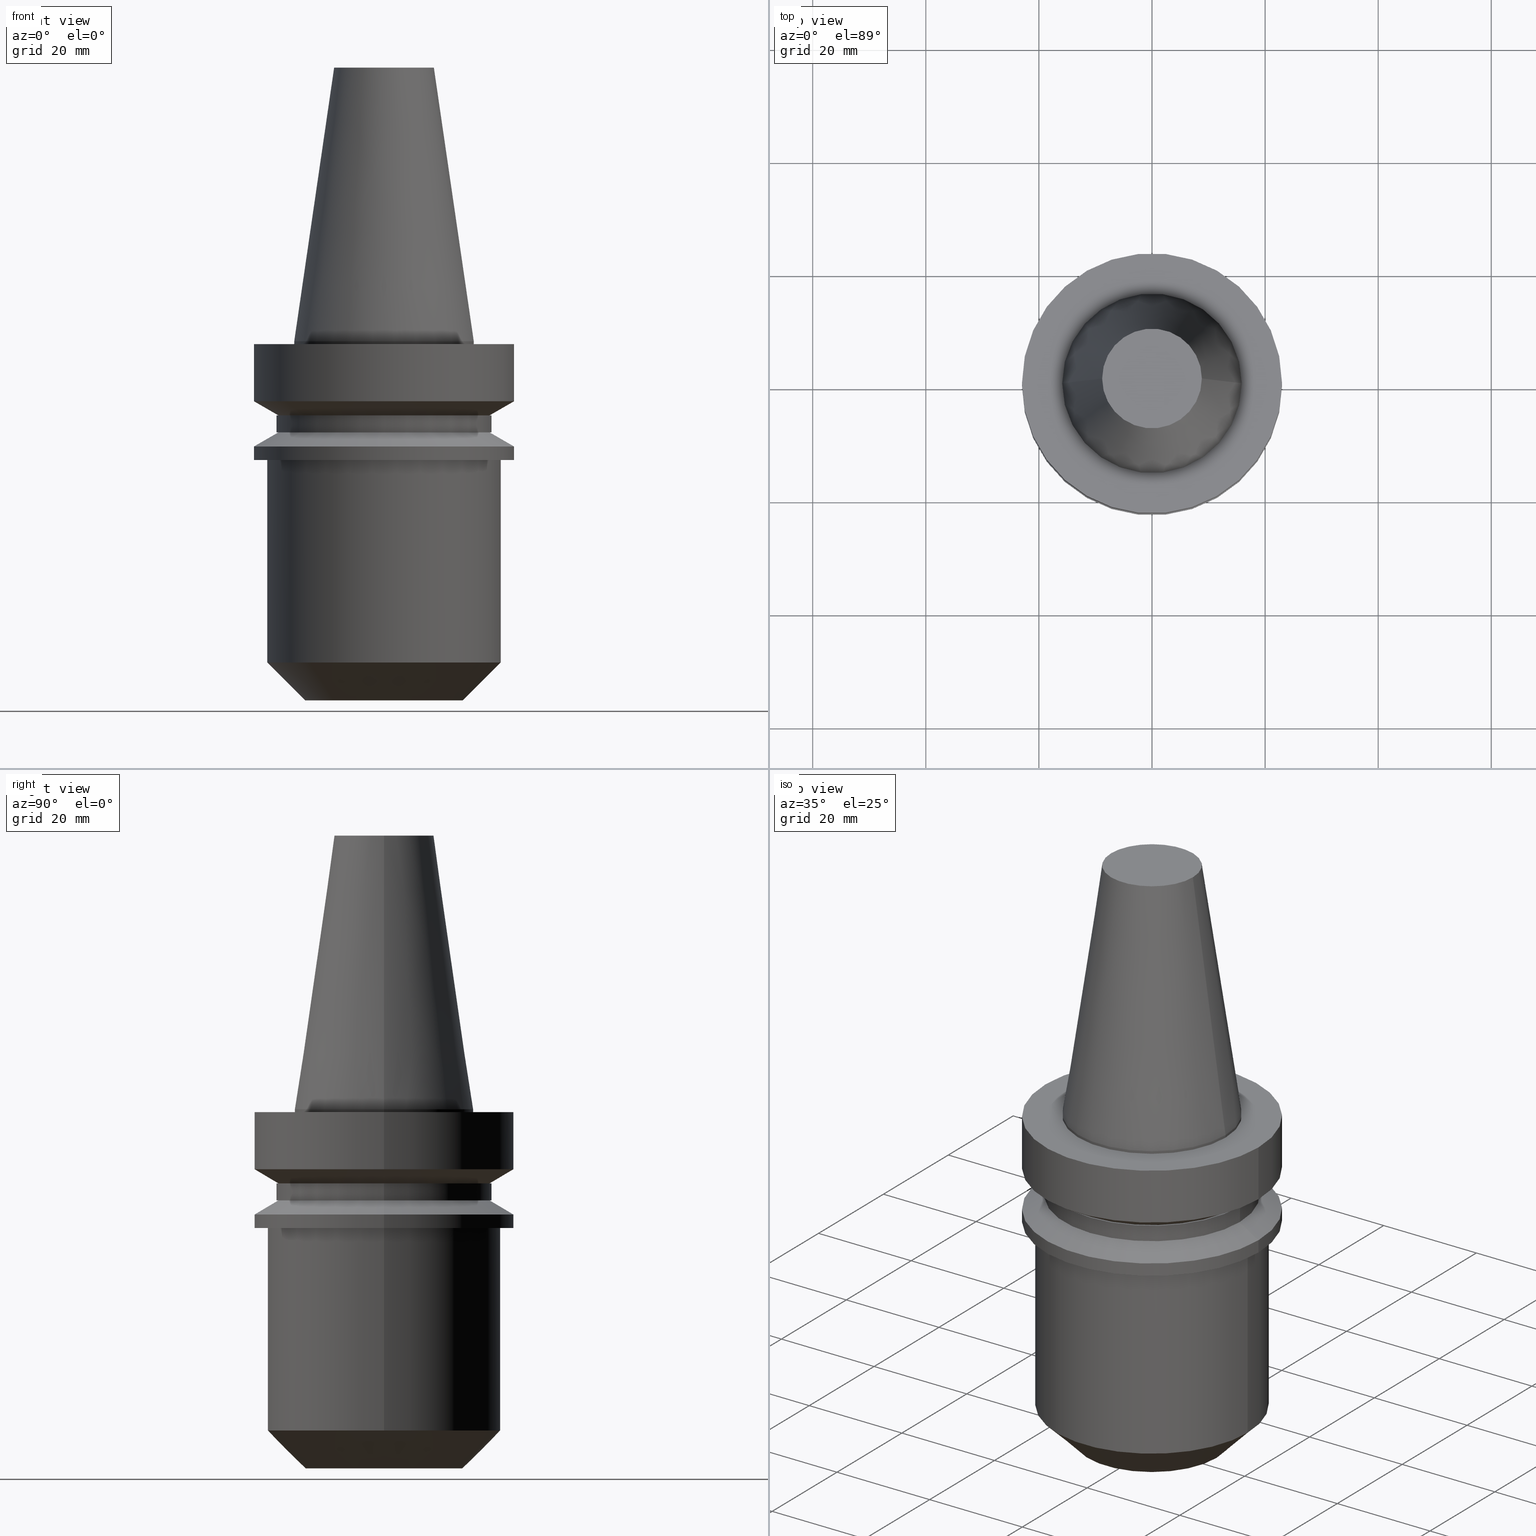
[diagram: canonical four-view strip — front | top / right | iso, engineering-drawing reading convention]
A machine part, canonical four-view strip (front | top / right | iso — engineering-drawing reading convention). The complete STEP part file that produces these views, byte-faithful:
ISO-10303-21;
HEADER;
FILE_DESCRIPTION (( 'STEP AP203' ),
    '1' );
FILE_NAME ('BBT30-EM_625-2_5.STEP',
    '2022-02-22T21:21:41',
    ( '' ),
    ( '' ),
    'SwSTEP 2.0',
    'SolidWorks 2021',
    '' );
FILE_SCHEMA (( 'CONFIG_CONTROL_DESIGN' ));
ENDSEC;

DATA;
#1 = CARTESIAN_POINT ( 'NONE',  ( 23.00000000000000355, 0.000000000000000000, 48.39999999999998437 ) ) ;
#2 = APPROVAL ( #689, 'UNSPECIFIED' ) ;
#3 = ORIENTED_EDGE ( 'NONE', *, *, #263, .T. ) ;
#4 = UNCERTAINTY_MEASURE_WITH_UNIT (LENGTH_MEASURE( 1.000000000000000082E-05 ), #313, 'distance_accuracy_value', 'NONE');
#5 = CARTESIAN_POINT ( 'NONE',  ( 18.66962701892216359, 2.551528767519354794E-15, -16.09999999999999076 ) ) ;
#6 = DIRECTION ( 'NONE',  ( 1.000000000000000000, 0.000000000000000000, 0.000000000000000000 ) ) ;
#7 = ORIENTED_EDGE ( 'NONE', *, *, #369, .T. ) ;
#8 = EDGE_CURVE ( 'NONE', #373, #28, #296, .T. ) ;
#9 = FACE_OUTER_BOUND ( 'NONE', #154, .T. ) ;
#10 = CLOSED_SHELL ( 'NONE', ( #318, #764, #546, #93, #453, #307, #525, #399, #177, #430, #312, #420, #435, #193, #638, #625, #731, #648, #181, #227, #104, #342, #159, #137, #671, #140, #38 ) ) ;
#11 = FACE_OUTER_BOUND ( 'NONE', #139, .T. ) ;
#12 = ORIENTED_EDGE ( 'NONE', *, *, #631, .F. ) ;
#13 = EDGE_CURVE ( 'NONE', #107, #721, #763, .T. ) ;
#14 = LINE ( 'NONE', #448, #105 ) ;
#15 = CYLINDRICAL_SURFACE ( 'NONE', #297, 15.87500000000000000 ) ;
#16 = EDGE_LOOP ( 'NONE', ( #745, #748, #512, #755 ) ) ;
#17 = CARTESIAN_POINT ( 'NONE',  ( 0.000000000000000000, 0.000000000000000000, 48.39999999999998437 ) ) ;
#18 = DIRECTION ( 'NONE',  ( -0.7071067811865434649, 8.659560562354883554E-17, 0.7071067811865516806 ) ) ;
#19 = ADVANCED_BREP_SHAPE_REPRESENTATION ( 'BBT30-EM_625-2_5', ( #614, #310 ), #405 ) ;
#20 = VERTEX_POINT ( 'NONE', #649 ) ;
#21 = DIRECTION ( 'NONE',  ( 1.000000000000000000, 0.000000000000000000, 0.000000000000000000 ) ) ;
#22 = DIRECTION ( 'NONE',  ( 1.000000000000000000, 0.000000000000000000, 0.000000000000000000 ) ) ;
#23 = ORIENTED_EDGE ( 'NONE', *, *, #707, .F. ) ;
#24 = CIRCLE ( 'NONE', #208, 23.00000000000000000 ) ;
#25 = AXIS2_PLACEMENT_3D ( 'NONE', #293, #540, #178 ) ;
#26 = DIRECTION ( 'NONE',  ( -0.000000000000000000, -0.000000000000000000, 1.000000000000000000 ) ) ;
#27 = DIRECTION ( 'NONE',  ( -0.000000000000000000, -0.000000000000000000, 1.000000000000000000 ) ) ;
#28 = VERTEX_POINT ( 'NONE', #581 ) ;
#29 = PERSON_AND_ORGANIZATION_ROLE ( 'creator' ) ;
#30 = DIRECTION ( 'NONE',  ( -0.000000000000000000, -0.000000000000000000, 1.000000000000000000 ) ) ;
#31 = ORIENTED_EDGE ( 'NONE', *, *, #702, .F. ) ;
#32 = EDGE_CURVE ( 'NONE', #273, #107, #75, .T. ) ;
#33 = COORDINATED_UNIVERSAL_TIME_OFFSET ( 6, 0, .BEHIND. ) ;
#34 = CARTESIAN_POINT ( 'NONE',  ( 13.94000000000008477, 0.000000000000000000, -63.50000000000000000 ) ) ;
#35 = DIRECTION ( 'NONE',  ( 1.000000000000000000, 0.000000000000000000, 0.000000000000000000 ) ) ;
#36 = CIRCLE ( 'NONE', #221, 8.816600212367498912 ) ;
#37 = DATE_AND_TIME ( #692, #616 ) ;
#38 = ADVANCED_FACE ( 'NONE', ( #282 ), #758, .F. ) ;
#39 = CARTESIAN_POINT ( 'NONE',  ( 7.937500000000000000, 0.000000000000000000, -63.50000000000000000 ) ) ;
#40 = CC_DESIGN_SECURITY_CLASSIFICATION ( #79, ( #508 ) ) ;
#41 = CARTESIAN_POINT ( 'NONE',  ( 0.000000000000000000, 22.99999999999999289, -20.99999999999999645 ) ) ;
#42 = LINE ( 'NONE', #686, #737 ) ;
#43 = EDGE_CURVE ( 'NONE', #201, #729, #219, .T. ) ;
#44 = DIRECTION ( 'NONE',  ( 1.000000000000000000, 0.000000000000000000, 0.000000000000000000 ) ) ;
#45 = PERSON_AND_ORGANIZATION_ROLE ( 'design_supplier' ) ;
#46 = DIRECTION ( 'NONE',  ( 0.000000000000000000, 0.000000000000000000, -1.000000000000000000 ) ) ;
#47 = ORIENTED_EDGE ( 'NONE', *, *, #125, .F. ) ;
#48 = AXIS2_PLACEMENT_3D ( 'NONE', #99, #393, #49 ) ;
#49 = DIRECTION ( 'NONE',  ( -1.000000000000000000, 0.000000000000000000, 0.000000000000000000 ) ) ;
#50 = CC_DESIGN_APPROVAL ( #61, ( #517 ) ) ;
#51 = DIRECTION ( 'NONE',  ( 1.000000000000000000, 0.000000000000000000, 0.000000000000000000 ) ) ;
#52 = CARTESIAN_POINT ( 'NONE',  ( 23.00000000000000000, 0.000000000000000000, -0.5000000000000004441 ) ) ;
#53 = FACE_OUTER_BOUND ( 'NONE', #602, .T. ) ;
#54 = EDGE_CURVE ( 'NONE', #721, #622, #58, .T. ) ;
#55 = DIRECTION ( 'NONE',  ( -0.000000000000000000, -0.000000000000000000, 1.000000000000000000 ) ) ;
#56 = CARTESIAN_POINT ( 'NONE',  ( 0.000000000000000000, 0.000000000000000000, -56.80000000000000426 ) ) ;
#57 = ORIENTED_EDGE ( 'NONE', *, *, #290, .T. ) ;
#58 = CIRCLE ( 'NONE', #564, 20.64000000000000412 ) ;
#59 = AXIS2_PLACEMENT_3D ( 'NONE', #605, #425, #189 ) ;
#60 = DIRECTION ( 'NONE',  ( 0.000000000000000000, -0.000000000000000000, 1.000000000000000000 ) ) ;
#61 = APPROVAL ( #457, 'UNSPECIFIED' ) ;
#62 = CIRCLE ( 'NONE', #158, 19.00000000000000000 ) ;
#63 = DIRECTION ( 'NONE',  ( 1.000000000000000000, 0.000000000000000000, 0.000000000000000000 ) ) ;
#64 = CIRCLE ( 'NONE', #630, 23.00000000000000711 ) ;
#65 = ORIENTED_EDGE ( 'NONE', *, *, #395, .F. ) ;
#66 = CARTESIAN_POINT ( 'NONE',  ( 0.000000000000000000, 0.000000000000000000, -18.60014200631680836 ) ) ;
#67 = FACE_OUTER_BOUND ( 'NONE', #145, .T. ) ;
#68 = EDGE_CURVE ( 'NONE', #729, #133, #661, .T. ) ;
#69 = ORIENTED_EDGE ( 'NONE', *, *, #54, .F. ) ;
#70 = FACE_OUTER_BOUND ( 'NONE', #119, .T. ) ;
#71 = DIRECTION ( 'NONE',  ( 1.000000000000000000, 0.000000000000000000, 0.000000000000000000 ) ) ;
#72 = ORIENTED_EDGE ( 'NONE', *, *, #503, .F. ) ;
#73 = EDGE_CURVE ( 'NONE', #528, #490, #670, .T. ) ;
#74 = DIRECTION ( 'NONE',  ( -0.000000000000000000, -0.000000000000000000, 1.000000000000000000 ) ) ;
#75 = CIRCLE ( 'NONE', #476, 20.64000000000000057 ) ;
#76 = DIRECTION ( 'NONE',  ( -0.000000000000000000, -0.000000000000000000, 1.000000000000000000 ) ) ;
#77 = CIRCLE ( 'NONE', #468, 7.937500000000000000 ) ;
#78 = ORIENTED_EDGE ( 'NONE', *, *, #702, .T. ) ;
#79 = SECURITY_CLASSIFICATION ( '', '', #160 ) ;
#80 = DIRECTION ( 'NONE',  ( -0.000000000000000000, -0.000000000000000000, 1.000000000000000000 ) ) ;
#81 = CARTESIAN_POINT ( 'NONE',  ( 0.000000000000000000, 0.000000000000000000, 48.39999999999998437 ) ) ;
#82 = EDGE_LOOP ( 'NONE', ( #226, #92 ) ) ;
#83 = MECHANICAL_CONTEXT ( 'NONE', #220, 'mechanical' ) ;
#84 = CARTESIAN_POINT ( 'NONE',  ( 0.000000000000000000, 0.000000000000000000, -16.10000000000000142 ) ) ;
#85 = EDGE_LOOP ( 'NONE', ( #303, #521, #109, #12 ) ) ;
#86 = LINE ( 'NONE', #257, #555 ) ;
#87 = ORIENTED_EDGE ( 'NONE', *, *, #268, .T. ) ;
#88 = CIRCLE ( 'NONE', #264, 7.937500000000000000 ) ;
#89 = CIRCLE ( 'NONE', #392, 19.00000000000000000 ) ;
#90 = APPLICATION_PROTOCOL_DEFINITION ( 'international standard', 'config_control_design', 1994, #220 ) ;
#91 = CYLINDRICAL_SURFACE ( 'NONE', #350, 7.937499999999996447 ) ;
#92 = ORIENTED_EDGE ( 'NONE', *, *, #253, .T. ) ;
#93 = ADVANCED_FACE ( 'NONE', ( #179 ), #552, .T. ) ;
#94 = DATE_AND_TIME ( #110, #224 ) ;
#95 = FACE_OUTER_BOUND ( 'NONE', #168, .T. ) ;
#96 = ORIENTED_EDGE ( 'NONE', *, *, #513, .T. ) ;
#97 = EDGE_CURVE ( 'NONE', #212, #752, #375, .T. ) ;
#98 = PERSON_AND_ORGANIZATION ( #647, #496 ) ;
#99 = CARTESIAN_POINT ( 'NONE',  ( 0.000000000000000000, 0.000000000000000000, 0.000000000000000000 ) ) ;
#100 = ORIENTED_EDGE ( 'NONE', *, *, #718, .T. ) ;
#101 = AXIS2_PLACEMENT_3D ( 'NONE', #81, #372, #678 ) ;
#102 = VECTOR ( 'NONE', #699, 1000.000000000000000 ) ;
#103 = APPROVAL_STATUS ( 'not_yet_approved' ) ;
#104 = ADVANCED_FACE ( 'NONE', ( #122, #126 ), #483, .F. ) ;
#105 = VECTOR ( 'NONE', #615, 1000.000000000000000 ) ;
#106 = DIRECTION ( 'NONE',  ( 1.000000000000000000, 0.000000000000000000, 0.000000000000000000 ) ) ;
#107 = VERTEX_POINT ( 'NONE', #601 ) ;
#108 = CARTESIAN_POINT ( 'NONE',  ( 0.000000000000000000, 8.816600212367498912, 48.39999999999999147 ) ) ;
#109 = ORIENTED_EDGE ( 'NONE', *, *, #395, .T. ) ;
#110 = CALENDAR_DATE ( 2022, 22, 2 ) ;
#111 = CYLINDRICAL_SURFACE ( 'NONE', #454, 23.00000000000000355 ) ;
#112 = CARTESIAN_POINT ( 'NONE',  ( 0.000000000000000000, 0.000000000000000000, -56.80000000000000426 ) ) ;
#113 = CARTESIAN_POINT ( 'NONE',  ( -20.64000000000000412, 2.527670993440137734E-15, -20.99999999999999645 ) ) ;
#114 = CIRCLE ( 'NONE', #582, 13.94000000000008477 ) ;
#115 = EDGE_LOOP ( 'NONE', ( #526, #100 ) ) ;
#116 = EDGE_CURVE ( 'NONE', #107, #273, #389, .T. ) ;
#117 = LINE ( 'NONE', #240, #543 ) ;
#118 = DIRECTION ( 'NONE',  ( -0.000000000000000000, -0.000000000000000000, 1.000000000000000000 ) ) ;
#119 = EDGE_LOOP ( 'NONE', ( #612, #233 ) ) ;
#120 = CC_DESIGN_PERSON_AND_ORGANIZATION_ASSIGNMENT ( #155, #400, ( #79 ) ) ;
#121 = DIRECTION ( 'NONE',  ( 1.000000000000000000, 0.000000000000000000, 0.000000000000000000 ) ) ;
#122 = FACE_BOUND ( 'NONE', #409, .T. ) ;
#123 = ORIENTED_EDGE ( 'NONE', *, *, #97, .F. ) ;
#124 = DIRECTION ( 'NONE',  ( 1.000000000000000000, 0.000000000000000000, 0.000000000000000000 ) ) ;
#125 = EDGE_CURVE ( 'NONE', #450, #487, #36, .T. ) ;
#126 = FACE_OUTER_BOUND ( 'NONE', #542, .T. ) ;
#127 = EDGE_LOOP ( 'NONE', ( #455, #387 ) ) ;
#128 = DIRECTION ( 'NONE',  ( 1.000000000000000000, 0.000000000000000000, 0.000000000000000000 ) ) ;
#129 = EDGE_CURVE ( 'NONE', #509, #591, #353, .T. ) ;
#130 = DIRECTION ( 'NONE',  ( -0.000000000000000000, -0.000000000000000000, 1.000000000000000000 ) ) ;
#131 = ORIENTED_EDGE ( 'NONE', *, *, #243, .F. ) ;
#132 = CARTESIAN_POINT ( 'NONE',  ( -15.87500000000000000, 1.944126793646423238E-15, -0.5000000000000004441 ) ) ;
#133 = VERTEX_POINT ( 'NONE', #545 ) ;
#134 = DIRECTION ( 'NONE',  ( 1.000000000000000000, 0.000000000000000000, 0.000000000000000000 ) ) ;
#135 = DIRECTION ( 'NONE',  ( -0.000000000000000000, -0.000000000000000000, 1.000000000000000000 ) ) ;
#136 = VERTEX_POINT ( 'NONE', #175 ) ;
#137 = ADVANCED_FACE ( 'NONE', ( #67 ), #479, .T. ) ;
#138 = LINE ( 'NONE', #747, #492 ) ;
#139 = EDGE_LOOP ( 'NONE', ( #252, #280, #258, #300 ) ) ;
#140 = ADVANCED_FACE ( 'NONE', ( #654 ), #172, .F. ) ;
#141 = DIRECTION ( 'NONE',  ( 1.000000000000000000, 0.000000000000000000, 0.000000000000000000 ) ) ;
#142 = DIRECTION ( 'NONE',  ( 0.000000000000000000, -0.000000000000000000, 1.000000000000000000 ) ) ;
#143 = ORIENTED_EDGE ( 'NONE', *, *, #573, .T. ) ;
#144 = DIRECTION ( 'NONE',  ( 1.000000000000000000, 0.000000000000000000, 0.000000000000000000 ) ) ;
#145 = EDGE_LOOP ( 'NONE', ( #246, #668, #394, #588 ) ) ;
#146 = AXIS2_PLACEMENT_3D ( 'NONE', #250, #436, #539 ) ;
#147 = CONICAL_SURFACE ( 'NONE', #712, 15.87500000000000000, 0.1448138426689024039 ) ;
#148 = APPROVAL_PERSON_ORGANIZATION ( #749, #61, #333 ) ;
#149 = LINE ( 'NONE', #34, #404 ) ;
#150 = EDGE_CURVE ( 'NONE', #133, #568, #355, .T. ) ;
#151 = VERTEX_POINT ( 'NONE', #185 ) ;
#152 = APPLICATION_PROTOCOL_DEFINITION ( 'international standard', 'config_control_design', 1994, #402 ) ;
#153 = DIRECTION ( 'NONE',  ( 1.000000000000000000, 0.000000000000000000, 0.000000000000000000 ) ) ;
#154 = EDGE_LOOP ( 'NONE', ( #437, #187, #500, #370 ) ) ;
#155 = PERSON_AND_ORGANIZATION ( #647, #496 ) ;
#156 = DIRECTION ( 'NONE',  ( -1.000000000000000000, 0.000000000000000000, 0.000000000000000000 ) ) ;
#157 = VERTEX_POINT ( 'NONE', #486 ) ;
#158 = AXIS2_PLACEMENT_3D ( 'NONE', #317, #449, #674 ) ;
#159 = ADVANCED_FACE ( 'NONE', ( #53 ), #667, .T. ) ;
#160 = SECURITY_CLASSIFICATION_LEVEL ( 'unclassified' ) ;
#161 = APPROVAL_PERSON_ORGANIZATION ( #577, #529, #217 ) ;
#162 = DIRECTION ( 'NONE',  ( -1.000000000000000000, 0.000000000000000000, 0.000000000000000000 ) ) ;
#163 = EDGE_LOOP ( 'NONE', ( #484, #684 ) ) ;
#164 = CARTESIAN_POINT ( 'NONE',  ( 8.816600212367498912, 1.511924458295098338E-15, 48.39999999999999858 ) ) ;
#165 = ORIENTED_EDGE ( 'NONE', *, *, #116, .T. ) ;
#166 = CARTESIAN_POINT ( 'NONE',  ( -15.87500000000000000, 0.000000000000000000, 0.000000000000000000 ) ) ;
#167 = EDGE_CURVE ( 'NONE', #20, #774, #549, .T. ) ;
#168 = EDGE_LOOP ( 'NONE', ( #384, #47, #173, #724 ) ) ;
#169 = VECTOR ( 'NONE', #765, 1000.000000000000000 ) ;
#170 = CARTESIAN_POINT ( 'NONE',  ( 0.000000000000000000, 0.000000000000000000, -16.09999999999999076 ) ) ;
#171 = CONICAL_SURFACE ( 'NONE', #351, 13.94000000000008477, 0.7853981633974423948 ) ;
#172 = CYLINDRICAL_SURFACE ( 'NONE', #234, 7.937499999999996447 ) ;
#173 = ORIENTED_EDGE ( 'NONE', *, *, #243, .T. ) ;
#174 = DIRECTION ( 'NONE',  ( 1.000000000000000000, 0.000000000000000000, 0.000000000000000000 ) ) ;
#175 = CARTESIAN_POINT ( 'NONE',  ( -19.00000000000000000, 2.326828918379970970E-15, -16.10000000000000142 ) ) ;
#176 = ORIENTED_EDGE ( 'NONE', *, *, #97, .T. ) ;
#177 = ADVANCED_FACE ( 'NONE', ( #489 ), #432, .T. ) ;
#178 = DIRECTION ( 'NONE',  ( 1.000000000000000000, 0.000000000000000000, 0.000000000000000000 ) ) ;
#179 = FACE_OUTER_BOUND ( 'NONE', #295, .T. ) ;
#180 = VERTEX_POINT ( 'NONE', #305 ) ;
#181 = ADVANCED_FACE ( 'NONE', ( #11 ), #260, .T. ) ;
#182 = AXIS2_PLACEMENT_3D ( 'NONE', #232, #723, #728 ) ;
#183 = DIRECTION ( 'NONE',  ( -1.000000000000000000, 0.000000000000000000, -0.000000000000000000 ) ) ;
#184 = CIRCLE ( 'NONE', #710, 7.937499999999996447 ) ;
#185 = CARTESIAN_POINT ( 'NONE',  ( 19.00000000000000000, 0.000000000000000000, -16.10000000000000142 ) ) ;
#186 = AXIS2_PLACEMENT_3D ( 'NONE', #301, #548, #183 ) ;
#187 = ORIENTED_EDGE ( 'NONE', *, *, #771, .T. ) ;
#188 = CARTESIAN_POINT ( 'NONE',  ( 15.87500000000000000, 0.000000000000000000, -0.5000000000000004441 ) ) ;
#189 = DIRECTION ( 'NONE',  ( 1.000000000000000000, 0.000000000000000000, 0.000000000000000000 ) ) ;
#190 = VERTEX_POINT ( 'NONE', #768 ) ;
#191 = DIRECTION ( 'NONE',  ( -0.000000000000000000, -0.000000000000000000, 1.000000000000000000 ) ) ;
#192 = CARTESIAN_POINT ( 'NONE',  ( -18.66962701892216359, 2.551528767519355189E-15, -13.10028401263362063 ) ) ;
#193 = ADVANCED_FACE ( 'NONE', ( #478 ), #681, .T. ) ;
#194 = ORIENTED_EDGE ( 'NONE', *, *, #584, .F. ) ;
#195 = PLANE ( 'NONE',  #337 ) ;
#196 = AXIS2_PLACEMENT_3D ( 'NONE', #643, #531, #284 ) ;
#197 = EDGE_LOOP ( 'NONE', ( #96, #733, #31, #626 ) ) ;
#198 = AXIS2_PLACEMENT_3D ( 'NONE', #362, #60, #604 ) ;
#199 = CARTESIAN_POINT ( 'NONE',  ( 0.000000000000000000, 0.000000000000000000, 48.39999999999999858 ) ) ;
#200 = CARTESIAN_POINT ( 'NONE',  ( 0.000000000000000000, 22.99999999999999289, -20.99999999999999645 ) ) ;
#201 = VERTEX_POINT ( 'NONE', #192 ) ;
#202 = CARTESIAN_POINT ( 'NONE',  ( 0.000000000000000000, 0.000000000000000000, -21.00000000000000355 ) ) ;
#203 = DIRECTION ( 'NONE',  ( 1.000000000000000000, 0.000000000000000000, 0.000000000000000000 ) ) ;
#204 = EDGE_LOOP ( 'NONE', ( #207, #289 ) ) ;
#205 = COORDINATED_UNIVERSAL_TIME_OFFSET ( 6, 0, .BEHIND. ) ;
#206 = DIRECTION ( 'NONE',  ( 1.000000000000000000, 0.000000000000000000, 0.000000000000000000 ) ) ;
#207 = ORIENTED_EDGE ( 'NONE', *, *, #332, .T. ) ;
#208 = AXIS2_PLACEMENT_3D ( 'NONE', #559, #378, #266 ) ;
#209 = AXIS2_PLACEMENT_3D ( 'NONE', #579, #754, #589 ) ;
#210 = CALENDAR_DATE ( 2022, 22, 2 ) ;
#211 = FACE_OUTER_BOUND ( 'NONE', #398, .T. ) ;
#212 = VERTEX_POINT ( 'NONE', #132 ) ;
#213 = APPROVAL_ROLE ( '' ) ;
#214 = DIRECTION ( 'NONE',  ( -0.000000000000000000, -0.000000000000000000, 1.000000000000000000 ) ) ;
#215 = DIRECTION ( 'NONE',  ( 1.000000000000000000, 0.000000000000000000, 0.000000000000000000 ) ) ;
#216 = EDGE_CURVE ( 'NONE', #752, #632, #138, .T. ) ;
#217 = APPROVAL_ROLE ( '' ) ;
#218 = CARTESIAN_POINT ( 'NONE',  ( 13.94000000000008477, 0.000000000000000000, -63.50000000000000000 ) ) ;
#219 = LINE ( 'NONE', #467, #685 ) ;
#220 = APPLICATION_CONTEXT ( 'configuration controlled 3d designs of mechanical parts and assemblies' ) ;
#221 = AXIS2_PLACEMENT_3D ( 'NONE', #497, #292, #299 ) ;
#222 = EDGE_CURVE ( 'NONE', #151, #136, #349, .T. ) ;
#223 = AXIS2_PLACEMENT_3D ( 'NONE', #524, #214, #174 ) ;
#224 = LOCAL_TIME ( 15, 21, 41.00000000000000000, #586 ) ;
#225 = DIRECTION ( 'NONE',  ( -0.000000000000000000, -0.000000000000000000, 1.000000000000000000 ) ) ;
#226 = ORIENTED_EDGE ( 'NONE', *, *, #600, .T. ) ;
#227 = ADVANCED_FACE ( 'NONE', ( #441 ), #383, .T. ) ;
#228 = DIRECTION ( 'NONE',  ( -1.000000000000000000, 0.000000000000000000, -0.000000000000000000 ) ) ;
#229 = EDGE_LOOP ( 'NONE', ( #311, #57, #481, #72 ) ) ;
#230 = DIRECTION ( 'NONE',  ( -0.000000000000000000, -0.000000000000000000, 1.000000000000000000 ) ) ;
#231 = CC_DESIGN_DATE_AND_TIME_ASSIGNMENT ( #37, #277, ( #79 ) ) ;
#232 = CARTESIAN_POINT ( 'NONE',  ( 0.000000000000000000, 0.000000000000000000, 48.39999999999998437 ) ) ;
#233 = ORIENTED_EDGE ( 'NONE', *, *, #613, .F. ) ;
#234 = AXIS2_PLACEMENT_3D ( 'NONE', #658, #608, #594 ) ;
#235 = DIRECTION ( 'NONE',  ( 1.000000000000000000, 0.000000000000000000, 0.000000000000000000 ) ) ;
#236 = CIRCLE ( 'NONE', #456, 22.99999999999999289 ) ;
#237 = DIRECTION ( 'NONE',  ( 1.000000000000000000, 0.000000000000000000, 0.000000000000000000 ) ) ;
#238 = EDGE_CURVE ( 'NONE', #212, #516, #624, .T. ) ;
#239 = ORIENTED_EDGE ( 'NONE', *, *, #13, .F. ) ;
#240 = CARTESIAN_POINT ( 'NONE',  ( -20.64000000000000412, 2.527670993440137734E-15, 0.000000000000000000 ) ) ;
#241 = DIRECTION ( 'NONE',  ( -0.000000000000000000, -0.000000000000000000, 1.000000000000000000 ) ) ;
#242 = ORIENTED_EDGE ( 'NONE', *, *, #73, .F. ) ;
#243 = EDGE_CURVE ( 'NONE', #450, #516, #621, .T. ) ;
#244 = CARTESIAN_POINT ( 'NONE',  ( 0.000000000000000000, 0.000000000000000000, -18.60014200631680836 ) ) ;
#245 = DIRECTION ( 'NONE',  ( -0.000000000000000000, -0.000000000000000000, 1.000000000000000000 ) ) ;
#246 = ORIENTED_EDGE ( 'NONE', *, *, #290, .F. ) ;
#247 = AXIS2_PLACEMENT_3D ( 'NONE', #499, #571, #206 ) ;
#248 = CARTESIAN_POINT ( 'NONE',  ( 0.000000000000000000, 0.000000000000000000, -13.10028401263362063 ) ) ;
#249 = CIRCLE ( 'NONE', #480, 18.66962701892216359 ) ;
#250 = CARTESIAN_POINT ( 'NONE',  ( 0.000000000000000000, 0.000000000000000000, -13.10028401263362063 ) ) ;
#251 = AXIS2_PLACEMENT_3D ( 'NONE', #244, #291, #429 ) ;
#252 = ORIENTED_EDGE ( 'NONE', *, *, #43, .F. ) ;
#253 = EDGE_CURVE ( 'NONE', #528, #659, #249, .T. ) ;
#254 = CARTESIAN_POINT ( 'NONE',  ( 0.000000000000000000, 0.000000000000000000, 48.39999999999998437 ) ) ;
#255 = ORIENTED_EDGE ( 'NONE', *, *, #469, .T. ) ;
#256 = CC_DESIGN_DATE_AND_TIME_ASSIGNMENT ( #756, #406, ( #517 ) ) ;
#257 = CARTESIAN_POINT ( 'NONE',  ( -13.94000000000008477, 1.707157638011420642E-15, -63.50000000000000000 ) ) ;
#258 = ORIENTED_EDGE ( 'NONE', *, *, #595, .T. ) ;
#259 = FACE_BOUND ( 'NONE', #204, .T. ) ;
#260 = CONICAL_SURFACE ( 'NONE', #146, 18.66962701892216359, 1.047197551196590082 ) ;
#261 = DIRECTION ( 'NONE',  ( -0.000000000000000000, -0.000000000000000000, 1.000000000000000000 ) ) ;
#262 = ORIENTED_EDGE ( 'NONE', *, *, #357, .F. ) ;
#263 = EDGE_CURVE ( 'NONE', #632, #516, #505, .T. ) ;
#264 = AXIS2_PLACEMENT_3D ( 'NONE', #488, #485, #354 ) ;
#265 = DIRECTION ( 'NONE',  ( 1.000000000000000000, 0.000000000000000000, 0.000000000000000000 ) ) ;
#266 = DIRECTION ( 'NONE',  ( 1.000000000000000000, 0.000000000000000000, 0.000000000000000000 ) ) ;
#267 = ORIENTED_EDGE ( 'NONE', *, *, #216, .T. ) ;
#268 = EDGE_CURVE ( 'NONE', #568, #609, #24, .T. ) ;
#269 = PERSON_AND_ORGANIZATION ( #647, #496 ) ;
#270 = DIRECTION ( 'NONE',  ( -0.000000000000000000, -0.000000000000000000, 1.000000000000000000 ) ) ;
#271 = ORIENTED_EDGE ( 'NONE', *, *, #477, .T. ) ;
#272 = DIRECTION ( 'NONE',  ( -0.000000000000000000, -0.000000000000000000, 1.000000000000000000 ) ) ;
#273 = VERTEX_POINT ( 'NONE', #314 ) ;
#274 = AXIS2_PLACEMENT_3D ( 'NONE', #418, #662, #359 ) ;
#275 = CONICAL_SURFACE ( 'NONE', #578, 23.00000000000000000, 1.047197551196589416 ) ;
#276 = APPROVAL_PERSON_ORGANIZATION ( #269, #2, #213 ) ;
#277 = DATE_TIME_ROLE ( 'classification_date' ) ;
#278 = DIRECTION ( 'NONE',  ( -0.000000000000000000, -0.000000000000000000, 1.000000000000000000 ) ) ;
#279 = EDGE_CURVE ( 'NONE', #336, #190, #62, .T. ) ;
#280 = ORIENTED_EDGE ( 'NONE', *, *, #324, .T. ) ;
#281 = DIRECTION ( 'NONE',  ( -0.000000000000000000, -0.000000000000000000, 1.000000000000000000 ) ) ;
#282 = FACE_OUTER_BOUND ( 'NONE', #447, .T. ) ;
#283 = APPROVAL_DATE_TIME ( #696, #529 ) ;
#284 = DIRECTION ( 'NONE',  ( 1.000000000000000000, 0.000000000000000000, 0.000000000000000000 ) ) ;
#285 = ORIENTED_EDGE ( 'NONE', *, *, #656, .T. ) ;
#286 = CIRCLE ( 'NONE', #196, 23.00000000000000000 ) ;
#287 = AXIS2_PLACEMENT_3D ( 'NONE', #739, #316, #320 ) ;
#288 = DIRECTION ( 'NONE',  ( 1.000000000000000000, 0.000000000000000000, 0.000000000000000000 ) ) ;
#289 = ORIENTED_EDGE ( 'NONE', *, *, #537, .T. ) ;
#290 = EDGE_CURVE ( 'NONE', #28, #273, #86, .T. ) ;
#291 = DIRECTION ( 'NONE',  ( -0.000000000000000000, -0.000000000000000000, 1.000000000000000000 ) ) ;
#292 = DIRECTION ( 'NONE',  ( -0.000000000000000000, -0.000000000000000000, 1.000000000000000000 ) ) ;
#293 = CARTESIAN_POINT ( 'NONE',  ( 0.000000000000000000, 0.000000000000000000, 0.000000000000000000 ) ) ;
#294 = DIRECTION ( 'NONE',  ( 1.000000000000000000, 0.000000000000000000, 0.000000000000000000 ) ) ;
#295 = EDGE_LOOP ( 'NONE', ( #356, #380, #606, #769 ) ) ;
#296 = CIRCLE ( 'NONE', #361, 13.94000000000008477 ) ;
#297 = AXIS2_PLACEMENT_3D ( 'NONE', #254, #272, #153 ) ;
#298 = CARTESIAN_POINT ( 'NONE',  ( 22.99999999999999289, 0.000000000000000000, -21.00000000000000355 ) ) ;
#299 = DIRECTION ( 'NONE',  ( 1.000000000000000000, 0.000000000000000000, 0.000000000000000000 ) ) ;
#300 = ORIENTED_EDGE ( 'NONE', *, *, #68, .F. ) ;
#301 = CARTESIAN_POINT ( 'NONE',  ( 0.000000000000000000, 18.66962701892216359, -13.10028401263362063 ) ) ;
#302 = CARTESIAN_POINT ( 'NONE',  ( 0.000000000000000000, 0.000000000000000000, -0.5000000000000004441 ) ) ;
#303 = ORIENTED_EDGE ( 'NONE', *, *, #167, .F. ) ;
#304 = DIRECTION ( 'NONE',  ( 1.000000000000000000, 0.000000000000000000, 0.000000000000000000 ) ) ;
#305 = CARTESIAN_POINT ( 'NONE',  ( -7.937499999999996447, 9.720633968232112245E-16, -20.99999999999999645 ) ) ;
#306 = ORIENTED_EDGE ( 'NONE', *, *, #444, .F. ) ;
#307 = ADVANCED_FACE ( 'NONE', ( #309 ), #391, .T. ) ;
#308 = VECTOR ( 'NONE', #261, 1000.000000000000000 ) ;
#309 = FACE_OUTER_BOUND ( 'NONE', #197, .T. ) ;
#310 = AXIS2_PLACEMENT_3D ( 'NONE', #371, #610, #382 ) ;
#311 = ORIENTED_EDGE ( 'NONE', *, *, #8, .T. ) ;
#312 = ADVANCED_FACE ( 'NONE', ( #744, #507 ), #195, .F. ) ;
#313 =( LENGTH_UNIT ( ) NAMED_UNIT ( * ) SI_UNIT ( .MILLI., .METRE. ) );
#314 = CARTESIAN_POINT ( 'NONE',  ( -20.64000000000000057, 2.527670993440137339E-15, -56.80000000000000426 ) ) ;
#315 = ORIENTED_EDGE ( 'NONE', *, *, #381, .T. ) ;
#316 = DIRECTION ( 'NONE',  ( -0.000000000000000000, -0.000000000000000000, 1.000000000000000000 ) ) ;
#317 = CARTESIAN_POINT ( 'NONE',  ( 0.000000000000000000, 0.000000000000000000, -13.10028401263362063 ) ) ;
#318 = ADVANCED_FACE ( 'NONE', ( #386 ), #91, .F. ) ;
#319 = EDGE_LOOP ( 'NONE', ( #532, #285, #315, #433 ) ) ;
#320 = DIRECTION ( 'NONE',  ( 1.000000000000000000, 0.000000000000000000, 0.000000000000000000 ) ) ;
#321 = AXIS2_PLACEMENT_3D ( 'NONE', #302, #720, #237 ) ;
#322 = CARTESIAN_POINT ( 'NONE',  ( 0.000000000000000000, 0.000000000000000000, 0.000000000000000000 ) ) ;
#323 = CONICAL_SURFACE ( 'NONE', #48, 15.87500000000000000, 0.1448138426689024039 ) ;
#324 = EDGE_CURVE ( 'NONE', #201, #735, #428, .T. ) ;
#325 = ORIENTED_EDGE ( 'NONE', *, *, #32, .T. ) ;
#326 = LOCAL_TIME ( 15, 21, 41.00000000000000000, #344 ) ;
#327 = PLANE ( 'NONE',  #738 ) ;
#328 = CARTESIAN_POINT ( 'NONE',  ( 0.000000000000000000, 0.000000000000000000, -63.50000000000000000 ) ) ;
#329 = EDGE_LOOP ( 'NONE', ( #366, #462, #343, #682 ) ) ;
#330 = CARTESIAN_POINT ( 'NONE',  ( -8.816600212367498912, 0.000000000000000000, 48.39999999999999858 ) ) ;
#331 = ORIENTED_EDGE ( 'NONE', *, *, #150, .T. ) ;
#332 = EDGE_CURVE ( 'NONE', #509, #157, #77, .T. ) ;
#333 = APPROVAL_ROLE ( '' ) ;
#334 = DIRECTION ( 'NONE',  ( 0.7071067811865434649, 0.000000000000000000, 0.7071067811865516806 ) ) ;
#335 = AXIS2_PLACEMENT_3D ( 'NONE', #711, #130, #71 ) ;
#336 = VERTEX_POINT ( 'NONE', #611 ) ;
#337 = AXIS2_PLACEMENT_3D ( 'NONE', #200, #142, #144 ) ;
#338 = VECTOR ( 'NONE', #413, 1000.000000000000000 ) ;
#339 = LINE ( 'NONE', #646, #102 ) ;
#340 = ORIENTED_EDGE ( 'NONE', *, *, #569, .F. ) ;
#341 = DIRECTION ( 'NONE',  ( -0.000000000000000000, -0.000000000000000000, 1.000000000000000000 ) ) ;
#342 = ADVANCED_FACE ( 'NONE', ( #556 ), #15, .T. ) ;
#343 = ORIENTED_EDGE ( 'NONE', *, *, #569, .T. ) ;
#344 = COORDINATED_UNIVERSAL_TIME_OFFSET ( 6, 0, .BEHIND. ) ;
#345 = PLANE ( 'NONE',  #493 ) ;
#346 = DIRECTION ( 'NONE',  ( -0.000000000000000000, -0.000000000000000000, 1.000000000000000000 ) ) ;
#347 = AXIS2_PLACEMENT_3D ( 'NONE', #691, #637, #6 ) ;
#348 = CC_DESIGN_PERSON_AND_ORGANIZATION_ASSIGNMENT ( #635, #45, ( #508 ) ) ;
#349 = CIRCLE ( 'NONE', #554, 19.00000000000000000 ) ;
#350 = AXIS2_PLACEMENT_3D ( 'NONE', #567, #27, #203 ) ;
#351 = AXIS2_PLACEMENT_3D ( 'NONE', #434, #627, #141 ) ;
#352 = DIRECTION ( 'NONE',  ( -1.000000000000000000, 0.000000000000000000, 0.000000000000000000 ) ) ;
#353 = LINE ( 'NONE', #541, #697 ) ;
#354 = DIRECTION ( 'NONE',  ( 1.000000000000000000, 0.000000000000000000, 0.000000000000000000 ) ) ;
#355 = LINE ( 'NONE', #1, #676 ) ;
#356 = ORIENTED_EDGE ( 'NONE', *, *, #363, .T. ) ;
#357 = EDGE_CURVE ( 'NONE', #180, #591, #184, .T. ) ;
#358 = DIRECTION ( 'NONE',  ( -0.000000000000000000, -0.000000000000000000, 1.000000000000000000 ) ) ;
#359 = DIRECTION ( 'NONE',  ( -1.000000000000000000, 0.000000000000000000, -0.000000000000000000 ) ) ;
#360 = ORIENTED_EDGE ( 'NONE', *, *, #363, .F. ) ;
#361 = AXIS2_PLACEMENT_3D ( 'NONE', #460, #644, #44 ) ;
#362 = CARTESIAN_POINT ( 'NONE',  ( 0.000000000000000000, 19.00000000000000000, -16.09999999999999787 ) ) ;
#363 = EDGE_CURVE ( 'NONE', #752, #212, #663, .T. ) ;
#364 = AXIS2_PLACEMENT_3D ( 'NONE', #680, #191, #743 ) ;
#365 = CARTESIAN_POINT ( 'NONE',  ( -22.99999999999999645, 2.816687638038911957E-15, 48.39999999999998437 ) ) ;
#366 = ORIENTED_EDGE ( 'NONE', *, *, #253, .F. ) ;
#367 = CARTESIAN_POINT ( 'NONE',  ( -18.66962701892216359, 0.000000000000000000, -16.09999999999999076 ) ) ;
#368 = DIRECTION ( 'NONE',  ( -0.000000000000000000, -0.000000000000000000, 1.000000000000000000 ) ) ;
#369 = EDGE_CURVE ( 'NONE', #659, #774, #757, .T. ) ;
#370 = ORIENTED_EDGE ( 'NONE', *, *, #381, .F. ) ;
#371 = CARTESIAN_POINT ( 'NONE',  ( 0.000000000000000000, 0.000000000000000000, 0.000000000000000000 ) ) ;
#372 = DIRECTION ( 'NONE',  ( -0.000000000000000000, -0.000000000000000000, 1.000000000000000000 ) ) ;
#373 = VERTEX_POINT ( 'NONE', #218 ) ;
#374 = CC_DESIGN_PERSON_AND_ORGANIZATION_ASSIGNMENT ( #514, #29, ( #517 ) ) ;
#375 = CIRCLE ( 'NONE', #321, 15.87500000000000000 ) ;
#376 = DIRECTION ( 'NONE',  ( 1.000000000000000000, 0.000000000000000000, 0.000000000000000000 ) ) ;
#377 = CIRCLE ( 'NONE', #494, 15.87500000000000000 ) ;
#378 = DIRECTION ( 'NONE',  ( -0.000000000000000000, -0.000000000000000000, 1.000000000000000000 ) ) ;
#379 = CC_DESIGN_APPROVAL ( #2, ( #79 ) ) ;
#380 = ORIENTED_EDGE ( 'NONE', *, *, #238, .T. ) ;
#381 = EDGE_CURVE ( 'NONE', #151, #190, #458, .T. ) ;
#382 = DIRECTION ( 'NONE',  ( 1.000000000000000000, 0.000000000000000000, 0.000000000000000000 ) ) ;
#383 = CYLINDRICAL_SURFACE ( 'NONE', #101, 23.00000000000000355 ) ;
#384 = ORIENTED_EDGE ( 'NONE', *, *, #469, .F. ) ;
#385 =( NAMED_UNIT ( * ) PLANE_ANGLE_UNIT ( ) SI_UNIT ( $, .RADIAN. ) );
#386 = FACE_OUTER_BOUND ( 'NONE', #618, .T. ) ;
#387 = ORIENTED_EDGE ( 'NONE', *, *, #736, .F. ) ;
#388 = PRODUCT_DEFINITION_SHAPE ( 'NONE', 'NONE',  #517 ) ;
#389 = CIRCLE ( 'NONE', #451, 20.64000000000000057 ) ;
#390 = DIRECTION ( 'NONE',  ( 1.000000000000000000, 0.000000000000000000, 0.000000000000000000 ) ) ;
#391 = CONICAL_SURFACE ( 'NONE', #415, 18.66962701892216359, 1.047197551196590082 ) ;
#392 = AXIS2_PLACEMENT_3D ( 'NONE', #248, #80, #265 ) ;
#393 = DIRECTION ( 'NONE',  ( 0.000000000000000000, 0.000000000000000000, -1.000000000000000000 ) ) ;
#394 = ORIENTED_EDGE ( 'NONE', *, *, #503, .T. ) ;
#395 = EDGE_CURVE ( 'NONE', #550, #490, #339, .T. ) ;
#396 = PERSON_AND_ORGANIZATION ( #647, #496 ) ;
#397 = CARTESIAN_POINT ( 'NONE',  ( 0.000000000000000000, 0.000000000000000000, -18.60014200631680836 ) ) ;
#398 = EDGE_LOOP ( 'NONE', ( #679, #255, #3, #131 ) ) ;
#399 = ADVANCED_FACE ( 'NONE', ( #693 ), #275, .T. ) ;
#400 = PERSON_AND_ORGANIZATION_ROLE ( 'classification_officer' ) ;
#401 = CARTESIAN_POINT ( 'NONE',  ( 0.000000000000000000, 0.000000000000000000, 0.000000000000000000 ) ) ;
#402 = APPLICATION_CONTEXT ( 'configuration controlled 3d designs of mechanical parts and assemblies' ) ;
#403 = EDGE_LOOP ( 'NONE', ( #78, #143, #576, #443 ) ) ;
#404 = VECTOR ( 'NONE', #334, 999.9999999999998863 ) ;
#405 =( GEOMETRIC_REPRESENTATION_CONTEXT ( 3 ) GLOBAL_UNCERTAINTY_ASSIGNED_CONTEXT ( ( #4 ) ) GLOBAL_UNIT_ASSIGNED_CONTEXT ( ( #313, #385, #669 ) ) REPRESENTATION_CONTEXT ( 'NONE', 'WORKASPACE' ) );
#406 = DATE_TIME_ROLE ( 'creation_date' ) ;
#407 = EDGE_CURVE ( 'NONE', #609, #568, #286, .T. ) ;
#408 = FACE_OUTER_BOUND ( 'NONE', #115, .T. ) ;
#409 = EDGE_LOOP ( 'NONE', ( #360, #123 ) ) ;
#410 = APPROVAL_DATE_TIME ( #94, #61 ) ;
#411 = CARTESIAN_POINT ( 'NONE',  ( 23.00000000000000000, 0.000000000000000000, -18.60014200631680836 ) ) ;
#412 = ORIENTED_EDGE ( 'NONE', *, *, #463, .T. ) ;
#413 = DIRECTION ( 'NONE',  ( -0.000000000000000000, -0.000000000000000000, 1.000000000000000000 ) ) ;
#414 = ORIENTED_EDGE ( 'NONE', *, *, #727, .T. ) ;
#415 = AXIS2_PLACEMENT_3D ( 'NONE', #502, #734, #446 ) ;
#416 = AXIS2_PLACEMENT_3D ( 'NONE', #17, #26, #570 ) ;
#417 = PLANE ( 'NONE',  #186 ) ;
#418 = CARTESIAN_POINT ( 'NONE',  ( 0.000000000000000000, 23.00000000000000000, -0.4999999999999995559 ) ) ;
#419 = EDGE_LOOP ( 'NONE', ( #572, #642 ) ) ;
#420 = ADVANCED_FACE ( 'NONE', ( #95 ), #323, .T. ) ;
#421 = CARTESIAN_POINT ( 'NONE',  ( 0.000000000000000000, 0.000000000000000000, -63.50000000000000000 ) ) ;
#422 = CARTESIAN_POINT ( 'NONE',  ( 0.000000000000000000, 0.000000000000000000, -63.50000000000000000 ) ) ;
#423 = ORIENTED_EDGE ( 'NONE', *, *, #463, .F. ) ;
#424 = FACE_BOUND ( 'NONE', #82, .T. ) ;
#425 = DIRECTION ( 'NONE',  ( -0.000000000000000000, -0.000000000000000000, 1.000000000000000000 ) ) ;
#426 = ORIENTED_EDGE ( 'NONE', *, *, #54, .T. ) ;
#427 = AXIS2_PLACEMENT_3D ( 'NONE', #422, #368, #294 ) ;
#428 = CIRCLE ( 'NONE', #698, 18.66962701892216359 ) ;
#429 = DIRECTION ( 'NONE',  ( 1.000000000000000000, 0.000000000000000000, 0.000000000000000000 ) ) ;
#430 = ADVANCED_FACE ( 'NONE', ( #211 ), #147, .T. ) ;
#431 = CIRCLE ( 'NONE', #580, 18.66962701892216359 ) ;
#432 = CYLINDRICAL_SURFACE ( 'NONE', #335, 22.99999999999999645 ) ;
#433 = ORIENTED_EDGE ( 'NONE', *, *, #279, .F. ) ;
#434 = CARTESIAN_POINT ( 'NONE',  ( 0.000000000000000000, 0.000000000000000000, -63.50000000000000000 ) ) ;
#435 = ADVANCED_FACE ( 'NONE', ( #408 ), #345, .F. ) ;
#436 = DIRECTION ( 'NONE',  ( -0.000000000000000000, -0.000000000000000000, 1.000000000000000000 ) ) ;
#437 = ORIENTED_EDGE ( 'NONE', *, *, #222, .T. ) ;
#438 = CARTESIAN_POINT ( 'NONE',  ( -23.00000000000000000, 2.816687638038912746E-15, -18.60014200631680836 ) ) ;
#439 = CARTESIAN_POINT ( 'NONE',  ( -15.87500000000000000, 0.000000000000000000, 0.000000000000000000 ) ) ;
#440 = ORIENTED_EDGE ( 'NONE', *, *, #631, .T. ) ;
#441 = FACE_OUTER_BOUND ( 'NONE', #634, .T. ) ;
#442 = CIRCLE ( 'NONE', #364, 22.99999999999999289 ) ;
#443 = ORIENTED_EDGE ( 'NONE', *, *, #150, .F. ) ;
#444 = EDGE_CURVE ( 'NONE', #516, #632, #377, .T. ) ;
#445 = FACE_OUTER_BOUND ( 'NONE', #229, .T. ) ;
#446 = DIRECTION ( 'NONE',  ( 1.000000000000000000, 0.000000000000000000, 0.000000000000000000 ) ) ;
#447 = EDGE_LOOP ( 'NONE', ( #23, #262 ) ) ;
#448 = CARTESIAN_POINT ( 'NONE',  ( -19.00000000000000000, 2.326828918379970970E-15, 48.39999999999998437 ) ) ;
#449 = DIRECTION ( 'NONE',  ( -0.000000000000000000, -0.000000000000000000, 1.000000000000000000 ) ) ;
#450 = VERTEX_POINT ( 'NONE', #330 ) ;
#451 = AXIS2_PLACEMENT_3D ( 'NONE', #56, #118, #63 ) ;
#452 = DIRECTION ( 'NONE',  ( -0.000000000000000000, -0.000000000000000000, 1.000000000000000000 ) ) ;
#453 = ADVANCED_FACE ( 'NONE', ( #760 ), #111, .T. ) ;
#454 = AXIS2_PLACEMENT_3D ( 'NONE', #575, #225, #288 ) ;
#455 = ORIENTED_EDGE ( 'NONE', *, *, #727, .F. ) ;
#456 = AXIS2_PLACEMENT_3D ( 'NONE', #202, #506, #730 ) ;
#457 = APPROVAL_STATUS ( 'not_yet_approved' ) ;
#458 = LINE ( 'NONE', #750, #639 ) ;
#459 = PRODUCT_RELATED_PRODUCT_CATEGORY ( 'detail', '', ( #705 ) ) ;
#460 = CARTESIAN_POINT ( 'NONE',  ( 0.000000000000000000, 0.000000000000000000, -63.50000000000000000 ) ) ;
#461 = CARTESIAN_POINT ( 'NONE',  ( 0.000000000000000000, 0.000000000000000000, -0.5000000000000004441 ) ) ;
#462 = ORIENTED_EDGE ( 'NONE', *, *, #73, .T. ) ;
#463 = EDGE_CURVE ( 'NONE', #622, #721, #628, .T. ) ;
#464 = VECTOR ( 'NONE', #472, 1000.000000000000000 ) ;
#465 = DIRECTION ( 'NONE',  ( 1.000000000000000000, 0.000000000000000000, 0.000000000000000000 ) ) ;
#466 = VECTOR ( 'NONE', #597, 1000.000000000000000 ) ;
#467 = CARTESIAN_POINT ( 'NONE',  ( -18.66962701892216359, 2.286369896999797237E-15, -13.10028401263362063 ) ) ;
#468 = AXIS2_PLACEMENT_3D ( 'NONE', #328, #30, #515 ) ;
#469 = EDGE_CURVE ( 'NONE', #487, #632, #42, .T. ) ;
#470 = PERSON_AND_ORGANIZATION_ROLE ( 'design_owner' ) ;
#471 = LINE ( 'NONE', #703, #761 ) ;
#472 = DIRECTION ( 'NONE',  ( -0.000000000000000000, -0.000000000000000000, 1.000000000000000000 ) ) ;
#473 = DIRECTION ( 'NONE',  ( 0.8660254037844348218, 0.000000000000000000, 0.5000000000000066613 ) ) ;
#474 = DIRECTION ( 'NONE',  ( -0.8660254037844348218, 1.060575238724902231E-16, 0.5000000000000066613 ) ) ;
#475 = CYLINDRICAL_SURFACE ( 'NONE', #533, 19.00000000000000000 ) ;
#476 = AXIS2_PLACEMENT_3D ( 'NONE', #112, #346, #51 ) ;
#477 = EDGE_CURVE ( 'NONE', #157, #180, #471, .T. ) ;
#478 = FACE_OUTER_BOUND ( 'NONE', #85, .T. ) ;
#479 = CONICAL_SURFACE ( 'NONE', #427, 13.94000000000008477, 0.7853981633974423948 ) ;
#480 = AXIS2_PLACEMENT_3D ( 'NONE', #617, #76, #740 ) ;
#481 = ORIENTED_EDGE ( 'NONE', *, *, #116, .F. ) ;
#482 = FACE_OUTER_BOUND ( 'NONE', #694, .T. ) ;
#483 = PLANE ( 'NONE',  #274 ) ;
#484 = ORIENTED_EDGE ( 'NONE', *, *, #222, .F. ) ;
#485 = DIRECTION ( 'NONE',  ( -0.000000000000000000, -0.000000000000000000, 1.000000000000000000 ) ) ;
#486 = CARTESIAN_POINT ( 'NONE',  ( -7.937500000000000000, 9.720633968232116190E-16, -63.50000000000000000 ) ) ;
#487 = VERTEX_POINT ( 'NONE', #164 ) ;
#488 = CARTESIAN_POINT ( 'NONE',  ( 0.000000000000000000, 0.000000000000000000, -63.50000000000000000 ) ) ;
#489 = FACE_OUTER_BOUND ( 'NONE', #655, .T. ) ;
#490 = VERTEX_POINT ( 'NONE', #411 ) ;
#491 = AXIS2_PLACEMENT_3D ( 'NONE', #41, #766, #215 ) ;
#492 = VECTOR ( 'NONE', #452, 1000.000000000000000 ) ;
#493 = AXIS2_PLACEMENT_3D ( 'NONE', #108, #46, #228 ) ;
#494 = AXIS2_PLACEMENT_3D ( 'NONE', #401, #583, #640 ) ;
#495 = CARTESIAN_POINT ( 'NONE',  ( 20.64000000000000412, 0.000000000000000000, -20.99999999999999645 ) ) ;
#496 = ORGANIZATION ( 'UNSPECIFIED', 'UNSPECIFIED', '' ) ;
#497 = CARTESIAN_POINT ( 'NONE',  ( 0.000000000000000000, 0.000000000000000000, 48.39999999999999858 ) ) ;
#498 = EDGE_LOOP ( 'NONE', ( #536, #176, #267, #306 ) ) ;
#499 = CARTESIAN_POINT ( 'NONE',  ( 0.000000000000000000, 0.000000000000000000, 48.39999999999998437 ) ) ;
#500 = ORIENTED_EDGE ( 'NONE', *, *, #695, .F. ) ;
#501 = FACE_OUTER_BOUND ( 'NONE', #319, .T. ) ;
#502 = CARTESIAN_POINT ( 'NONE',  ( 0.000000000000000000, 0.000000000000000000, -13.10028401263362063 ) ) ;
#503 = EDGE_CURVE ( 'NONE', #373, #107, #149, .T. ) ;
#504 = EDGE_LOOP ( 'NONE', ( #242, #741, #7, #440 ) ) ;
#505 = CIRCLE ( 'NONE', #565, 15.87500000000000000 ) ;
#506 = DIRECTION ( 'NONE',  ( -0.000000000000000000, -0.000000000000000000, 1.000000000000000000 ) ) ;
#507 = FACE_BOUND ( 'NONE', #672, .T. ) ;
#508 = PRODUCT_DEFINITION_FORMATION_WITH_SPECIFIED_SOURCE ( 'ANY', '', #705, .NOT_KNOWN. ) ;
#509 = VERTEX_POINT ( 'NONE', #39 ) ;
#510 = DIRECTION ( 'NONE',  ( 0.000000000000000000, -0.000000000000000000, 1.000000000000000000 ) ) ;
#511 = DIRECTION ( 'NONE',  ( -0.1443082234293875943, 0.000000000000000000, -0.9895327870518761948 ) ) ;
#512 = ORIENTED_EDGE ( 'NONE', *, *, #129, .T. ) ;
#513 = EDGE_CURVE ( 'NONE', #735, #201, #566, .T. ) ;
#514 = PERSON_AND_ORGANIZATION ( #647, #496 ) ;
#515 = DIRECTION ( 'NONE',  ( 1.000000000000000000, 0.000000000000000000, 0.000000000000000000 ) ) ;
#516 = VERTEX_POINT ( 'NONE', #166 ) ;
#517 = PRODUCT_DEFINITION ( 'UNKNOWN', '', #508, #619 ) ;
#518 = VECTOR ( 'NONE', #511, 1000.000000000000114 ) ;
#519 = CARTESIAN_POINT ( 'NONE',  ( -23.00000000000000000, 0.000000000000000000, -18.60014200631680836 ) ) ;
#520 = AXIS2_PLACEMENT_3D ( 'NONE', #461, #341, #106 ) ;
#521 = ORIENTED_EDGE ( 'NONE', *, *, #736, .T. ) ;
#522 = AXIS2_PLACEMENT_3D ( 'NONE', #722, #653, #128 ) ;
#523 = CALENDAR_DATE ( 2022, 22, 2 ) ;
#524 = CARTESIAN_POINT ( 'NONE',  ( 0.000000000000000000, 0.000000000000000000, -13.10028401263362063 ) ) ;
#525 = ADVANCED_FACE ( 'NONE', ( #9 ), #475, .T. ) ;
#526 = ORIENTED_EDGE ( 'NONE', *, *, #125, .T. ) ;
#527 = CARTESIAN_POINT ( 'NONE',  ( 0.000000000000000000, 0.000000000000000000, -20.99999999999999645 ) ) ;
#528 = VERTEX_POINT ( 'NONE', #5 ) ;
#529 = APPROVAL ( #103, 'UNSPECIFIED' ) ;
#530 = COORDINATED_UNIVERSAL_TIME_OFFSET ( 6, 0, .BEHIND. ) ;
#531 = DIRECTION ( 'NONE',  ( -0.000000000000000000, -0.000000000000000000, 1.000000000000000000 ) ) ;
#532 = ORIENTED_EDGE ( 'NONE', *, *, #771, .F. ) ;
#533 = AXIS2_PLACEMENT_3D ( 'NONE', #607, #230, #304 ) ;
#534 = AXIS2_PLACEMENT_3D ( 'NONE', #666, #767, #124 ) ;
#535 = DIRECTION ( 'NONE',  ( -0.000000000000000000, -0.000000000000000000, 1.000000000000000000 ) ) ;
#536 = ORIENTED_EDGE ( 'NONE', *, *, #238, .F. ) ;
#537 = EDGE_CURVE ( 'NONE', #157, #509, #88, .T. ) ;
#538 = FACE_BOUND ( 'NONE', #419, .T. ) ;
#539 = DIRECTION ( 'NONE',  ( 1.000000000000000000, 0.000000000000000000, 0.000000000000000000 ) ) ;
#540 = DIRECTION ( 'NONE',  ( -0.000000000000000000, -0.000000000000000000, 1.000000000000000000 ) ) ;
#541 = CARTESIAN_POINT ( 'NONE',  ( 7.937499999999996447, 0.000000000000000000, 0.000000000000000000 ) ) ;
#542 = EDGE_LOOP ( 'NONE', ( #87, #560 ) ) ;
#543 = VECTOR ( 'NONE', #55, 1000.000000000000000 ) ;
#544 = CARTESIAN_POINT ( 'NONE',  ( 15.87500000000000000, 1.944126793646423238E-15, 0.000000000000000000 ) ) ;
#545 = CARTESIAN_POINT ( 'NONE',  ( 23.00000000000000711, 0.000000000000000000, -10.60014200631680126 ) ) ;
#546 = ADVANCED_FACE ( 'NONE', ( #482 ), #709, .T. ) ;
#547 = ORIENTED_EDGE ( 'NONE', *, *, #167, .T. ) ;
#548 = DIRECTION ( 'NONE',  ( 0.000000000000000000, 0.000000000000000000, -1.000000000000000000 ) ) ;
#549 = LINE ( 'NONE', #365, #590 ) ;
#550 = VERTEX_POINT ( 'NONE', #298 ) ;
#551 = CARTESIAN_POINT ( 'NONE',  ( 18.66962701892216359, 0.000000000000000000, -13.10028401263362063 ) ) ;
#552 = CYLINDRICAL_SURFACE ( 'NONE', #182, 15.87500000000000000 ) ;
#553 = EDGE_LOOP ( 'NONE', ( #598, #664 ) ) ;
#554 = AXIS2_PLACEMENT_3D ( 'NONE', #84, #135, #22 ) ;
#555 = VECTOR ( 'NONE', #18, 999.9999999999998863 ) ;
#556 = FACE_OUTER_BOUND ( 'NONE', #498, .T. ) ;
#557 = ORIENTED_EDGE ( 'NONE', *, *, #537, .F. ) ;
#558 = CARTESIAN_POINT ( 'NONE',  ( 0.000000000000000000, 0.000000000000000000, -10.60014200631680126 ) ) ;
#559 = CARTESIAN_POINT ( 'NONE',  ( 0.000000000000000000, 0.000000000000000000, -0.5000000000000004441 ) ) ;
#560 = ORIENTED_EDGE ( 'NONE', *, *, #407, .T. ) ;
#561 = CARTESIAN_POINT ( 'NONE',  ( -23.00000000000000711, 2.816687638038913141E-15, -10.60014200631680126 ) ) ;
#562 = DIRECTION ( 'NONE',  ( 1.000000000000000000, 0.000000000000000000, 0.000000000000000000 ) ) ;
#563 = ORIENTED_EDGE ( 'NONE', *, *, #584, .T. ) ;
#564 = AXIS2_PLACEMENT_3D ( 'NONE', #701, #708, #35 ) ;
#565 = AXIS2_PLACEMENT_3D ( 'NONE', #322, #629, #562 ) ;
#566 = CIRCLE ( 'NONE', #223, 18.66962701892216359 ) ;
#567 = CARTESIAN_POINT ( 'NONE',  ( 0.000000000000000000, 0.000000000000000000, 0.000000000000000000 ) ) ;
#568 = VERTEX_POINT ( 'NONE', #52 ) ;
#569 = EDGE_CURVE ( 'NONE', #490, #774, #762, .T. ) ;
#570 = DIRECTION ( 'NONE',  ( 1.000000000000000000, 0.000000000000000000, 0.000000000000000000 ) ) ;
#571 = DIRECTION ( 'NONE',  ( -0.000000000000000000, -0.000000000000000000, 1.000000000000000000 ) ) ;
#572 = ORIENTED_EDGE ( 'NONE', *, *, #513, .F. ) ;
#573 = EDGE_CURVE ( 'NONE', #729, #609, #706, .T. ) ;
#574 = PERSON_AND_ORGANIZATION_ROLE ( 'creator' ) ;
#575 = CARTESIAN_POINT ( 'NONE',  ( 0.000000000000000000, 0.000000000000000000, 48.39999999999998437 ) ) ;
#576 = ORIENTED_EDGE ( 'NONE', *, *, #268, .F. ) ;
#577 = PERSON_AND_ORGANIZATION ( #647, #496 ) ;
#578 = AXIS2_PLACEMENT_3D ( 'NONE', #397, #633, #162 ) ;
#579 = CARTESIAN_POINT ( 'NONE',  ( 0.000000000000000000, 0.000000000000000000, -20.99999999999999645 ) ) ;
#580 = AXIS2_PLACEMENT_3D ( 'NONE', #170, #358, #235 ) ;
#581 = CARTESIAN_POINT ( 'NONE',  ( -13.94000000000008477, 2.117414315725779089E-15, -63.50000000000000000 ) ) ;
#582 = AXIS2_PLACEMENT_3D ( 'NONE', #421, #657, #121 ) ;
#583 = DIRECTION ( 'NONE',  ( -0.000000000000000000, -0.000000000000000000, 1.000000000000000000 ) ) ;
#584 = EDGE_CURVE ( 'NONE', #273, #622, #117, .T. ) ;
#585 = ORIENTED_EDGE ( 'NONE', *, *, #68, .T. ) ;
#586 = COORDINATED_UNIVERSAL_TIME_OFFSET ( 6, 0, .BEHIND. ) ;
#587 = DIRECTION ( 'NONE',  ( 0.000000000000000000, 0.000000000000000000, -1.000000000000000000 ) ) ;
#588 = ORIENTED_EDGE ( 'NONE', *, *, #32, .F. ) ;
#589 = DIRECTION ( 'NONE',  ( 1.000000000000000000, 0.000000000000000000, 0.000000000000000000 ) ) ;
#590 = VECTOR ( 'NONE', #245, 1000.000000000000000 ) ;
#591 = VERTEX_POINT ( 'NONE', #650 ) ;
#592 = CIRCLE ( 'NONE', #534, 23.00000000000000000 ) ;
#593 = FACE_OUTER_BOUND ( 'NONE', #553, .T. ) ;
#594 = DIRECTION ( 'NONE',  ( 1.000000000000000000, 0.000000000000000000, 0.000000000000000000 ) ) ;
#595 = EDGE_CURVE ( 'NONE', #735, #133, #715, .T. ) ;
#596 = DIRECTION ( 'NONE',  ( 0.000000000000000000, 0.000000000000000000, -1.000000000000000000 ) ) ;
#597 = DIRECTION ( 'NONE',  ( 0.8660254037844344888, 1.060575238724901861E-16, -0.5000000000000072164 ) ) ;
#598 = ORIENTED_EDGE ( 'NONE', *, *, #695, .T. ) ;
#599 = FACE_OUTER_BOUND ( 'NONE', #163, .T. ) ;
#600 = EDGE_CURVE ( 'NONE', #659, #528, #431, .T. ) ;
#601 = CARTESIAN_POINT ( 'NONE',  ( 20.64000000000000057, 0.000000000000000000, -56.80000000000000426 ) ) ;
#602 = EDGE_LOOP ( 'NONE', ( #194, #325, #717, #426 ) ) ;
#603 = CIRCLE ( 'NONE', #287, 7.937499999999996447 ) ;
#604 = DIRECTION ( 'NONE',  ( 1.000000000000000000, 0.000000000000000000, 0.000000000000000000 ) ) ;
#605 = CARTESIAN_POINT ( 'NONE',  ( 0.000000000000000000, 0.000000000000000000, 0.000000000000000000 ) ) ;
#606 = ORIENTED_EDGE ( 'NONE', *, *, #263, .F. ) ;
#607 = CARTESIAN_POINT ( 'NONE',  ( 0.000000000000000000, 0.000000000000000000, 48.39999999999998437 ) ) ;
#608 = DIRECTION ( 'NONE',  ( -0.000000000000000000, -0.000000000000000000, 1.000000000000000000 ) ) ;
#609 = VERTEX_POINT ( 'NONE', #719 ) ;
#610 = DIRECTION ( 'NONE',  ( 0.000000000000000000, 0.000000000000000000, 1.000000000000000000 ) ) ;
#611 = CARTESIAN_POINT ( 'NONE',  ( -19.00000000000000000, 2.326828918379970970E-15, -13.10028401263362063 ) ) ;
#612 = ORIENTED_EDGE ( 'NONE', *, *, #8, .F. ) ;
#613 = EDGE_CURVE ( 'NONE', #28, #373, #114, .T. ) ;
#614 = MANIFOLD_SOLID_BREP ( 'EM', #10 ) ;
#615 = DIRECTION ( 'NONE',  ( -0.000000000000000000, -0.000000000000000000, 1.000000000000000000 ) ) ;
#616 = LOCAL_TIME ( 15, 21, 41.00000000000000000, #33 ) ;
#617 = CARTESIAN_POINT ( 'NONE',  ( 0.000000000000000000, 0.000000000000000000, -16.09999999999999076 ) ) ;
#618 = EDGE_LOOP ( 'NONE', ( #557, #271, #713, #704 ) ) ;
#619 = DESIGN_CONTEXT ( 'detailed design', #402, 'design' ) ;
#620 = DIRECTION ( 'NONE',  ( -0.000000000000000000, -0.000000000000000000, 1.000000000000000000 ) ) ;
#621 = LINE ( 'NONE', #439, #518 ) ;
#622 = VERTEX_POINT ( 'NONE', #113 ) ;
#623 = CARTESIAN_POINT ( 'NONE',  ( 18.66962701892216359, 0.000000000000000000, -13.10028401263362063 ) ) ;
#624 = LINE ( 'NONE', #732, #308 ) ;
#625 = ADVANCED_FACE ( 'NONE', ( #599, #424 ), #660, .F. ) ;
#626 = ORIENTED_EDGE ( 'NONE', *, *, #595, .F. ) ;
#627 = DIRECTION ( 'NONE',  ( -0.000000000000000000, -0.000000000000000000, 1.000000000000000000 ) ) ;
#628 = CIRCLE ( 'NONE', #209, 20.64000000000000412 ) ;
#629 = DIRECTION ( 'NONE',  ( -0.000000000000000000, -0.000000000000000000, 1.000000000000000000 ) ) ;
#630 = AXIS2_PLACEMENT_3D ( 'NONE', #558, #74, #134 ) ;
#631 = EDGE_CURVE ( 'NONE', #774, #490, #592, .T. ) ;
#632 = VERTEX_POINT ( 'NONE', #544 ) ;
#633 = DIRECTION ( 'NONE',  ( 0.000000000000000000, 0.000000000000000000, -1.000000000000000000 ) ) ;
#634 = EDGE_LOOP ( 'NONE', ( #675, #585, #331, #688 ) ) ;
#635 = PERSON_AND_ORGANIZATION ( #647, #496 ) ;
#636 = DIRECTION ( 'NONE',  ( 0.1443082234293875943, 1.767266039134405996E-17, -0.9895327870518761948 ) ) ;
#637 = DIRECTION ( 'NONE',  ( -0.000000000000000000, -0.000000000000000000, 1.000000000000000000 ) ) ;
#638 = ADVANCED_FACE ( 'NONE', ( #775 ), #677, .T. ) ;
#639 = VECTOR ( 'NONE', #278, 1000.000000000000000 ) ;
#640 = DIRECTION ( 'NONE',  ( 1.000000000000000000, 0.000000000000000000, 0.000000000000000000 ) ) ;
#641 = AXIS2_PLACEMENT_3D ( 'NONE', #66, #596, #352 ) ;
#642 = ORIENTED_EDGE ( 'NONE', *, *, #324, .F. ) ;
#643 = CARTESIAN_POINT ( 'NONE',  ( 0.000000000000000000, 0.000000000000000000, -0.5000000000000004441 ) ) ;
#644 = DIRECTION ( 'NONE',  ( -0.000000000000000000, -0.000000000000000000, 1.000000000000000000 ) ) ;
#645 = DATE_AND_TIME ( #523, #714 ) ;
#646 = CARTESIAN_POINT ( 'NONE',  ( 22.99999999999999645, 0.000000000000000000, 48.39999999999998437 ) ) ;
#647 = PERSON ( 'UNSPECIFIED', 'UNSPECIFIED', 'UNSPECIFIED', ('UNSPECIFIED'), ('UNSPECIFIED'), ('UNSPECIFIED') ) ;
#648 = ADVANCED_FACE ( 'NONE', ( #538, #593 ), #417, .F. ) ;
#649 = CARTESIAN_POINT ( 'NONE',  ( -22.99999999999999289, 2.816687638038911957E-15, -21.00000000000000355 ) ) ;
#650 = CARTESIAN_POINT ( 'NONE',  ( 7.937499999999996447, 0.000000000000000000, -20.99999999999999645 ) ) ;
#651 = CARTESIAN_POINT ( 'NONE',  ( 20.64000000000000412, 0.000000000000000000, 0.000000000000000000 ) ) ;
#652 = CC_DESIGN_PERSON_AND_ORGANIZATION_ASSIGNMENT ( #396, #470, ( #705 ) ) ;
#653 = DIRECTION ( 'NONE',  ( -0.000000000000000000, -0.000000000000000000, 1.000000000000000000 ) ) ;
#654 = FACE_OUTER_BOUND ( 'NONE', #16, .T. ) ;
#655 = EDGE_LOOP ( 'NONE', ( #414, #547, #340, #65 ) ) ;
#656 = EDGE_CURVE ( 'NONE', #136, #151, #700, .T. ) ;
#657 = DIRECTION ( 'NONE',  ( -0.000000000000000000, -0.000000000000000000, 1.000000000000000000 ) ) ;
#658 = CARTESIAN_POINT ( 'NONE',  ( 0.000000000000000000, 0.000000000000000000, 0.000000000000000000 ) ) ;
#659 = VERTEX_POINT ( 'NONE', #367 ) ;
#660 = PLANE ( 'NONE',  #198 ) ;
#661 = CIRCLE ( 'NONE', #347, 23.00000000000000711 ) ;
#662 = DIRECTION ( 'NONE',  ( 0.000000000000000000, 0.000000000000000000, -1.000000000000000000 ) ) ;
#663 = CIRCLE ( 'NONE', #520, 15.87500000000000000 ) ;
#664 = ORIENTED_EDGE ( 'NONE', *, *, #279, .T. ) ;
#665 = LOCAL_TIME ( 15, 21, 41.00000000000000000, #530 ) ;
#666 = CARTESIAN_POINT ( 'NONE',  ( 0.000000000000000000, 0.000000000000000000, -18.60014200631680836 ) ) ;
#667 = CYLINDRICAL_SURFACE ( 'NONE', #59, 20.64000000000000412 ) ;
#668 = ORIENTED_EDGE ( 'NONE', *, *, #613, .T. ) ;
#669 =( NAMED_UNIT ( * ) SI_UNIT ( $, .STERADIAN. ) SOLID_ANGLE_UNIT ( ) );
#670 = LINE ( 'NONE', #716, #466 ) ;
#671 = ADVANCED_FACE ( 'NONE', ( #70, #259 ), #327, .F. ) ;
#672 = EDGE_LOOP ( 'NONE', ( #69, #423 ) ) ;
#673 = CYLINDRICAL_SURFACE ( 'NONE', #416, 19.00000000000000000 ) ;
#674 = DIRECTION ( 'NONE',  ( 1.000000000000000000, 0.000000000000000000, 0.000000000000000000 ) ) ;
#675 = ORIENTED_EDGE ( 'NONE', *, *, #573, .F. ) ;
#676 = VECTOR ( 'NONE', #241, 1000.000000000000000 ) ;
#677 = CONICAL_SURFACE ( 'NONE', #641, 23.00000000000000000, 1.047197551196589416 ) ;
#678 = DIRECTION ( 'NONE',  ( 1.000000000000000000, 0.000000000000000000, 0.000000000000000000 ) ) ;
#679 = ORIENTED_EDGE ( 'NONE', *, *, #718, .F. ) ;
#680 = CARTESIAN_POINT ( 'NONE',  ( 0.000000000000000000, 0.000000000000000000, -21.00000000000000355 ) ) ;
#681 = CYLINDRICAL_SURFACE ( 'NONE', #247, 22.99999999999999645 ) ;
#682 = ORIENTED_EDGE ( 'NONE', *, *, #369, .F. ) ;
#683 = CARTESIAN_POINT ( 'NONE',  ( 0.000000000000000000, 0.000000000000000000, -13.10028401263362063 ) ) ;
#684 = ORIENTED_EDGE ( 'NONE', *, *, #656, .F. ) ;
#685 = VECTOR ( 'NONE', #474, 1000.000000000000000 ) ;
#686 = CARTESIAN_POINT ( 'NONE',  ( 15.87500000000000000, 1.944126793646423238E-15, 0.000000000000000000 ) ) ;
#687 = VECTOR ( 'NONE', #473, 1000.000000000000000 ) ;
#688 = ORIENTED_EDGE ( 'NONE', *, *, #407, .F. ) ;
#689 = APPROVAL_STATUS ( 'not_yet_approved' ) ;
#690 = CARTESIAN_POINT ( 'NONE',  ( 0.000000000000000000, 0.000000000000000000, 0.000000000000000000 ) ) ;
#691 = CARTESIAN_POINT ( 'NONE',  ( 0.000000000000000000, 0.000000000000000000, -10.60014200631680126 ) ) ;
#692 = CALENDAR_DATE ( 2022, 22, 2 ) ;
#693 = FACE_OUTER_BOUND ( 'NONE', #329, .T. ) ;
#694 = EDGE_LOOP ( 'NONE', ( #165, #563, #412, #239 ) ) ;
#695 = EDGE_CURVE ( 'NONE', #190, #336, #89, .T. ) ;
#696 = DATE_AND_TIME ( #746, #326 ) ;
#697 = VECTOR ( 'NONE', #772, 1000.000000000000000 ) ;
#698 = AXIS2_PLACEMENT_3D ( 'NONE', #683, #270, #390 ) ;
#699 = DIRECTION ( 'NONE',  ( -0.000000000000000000, -0.000000000000000000, 1.000000000000000000 ) ) ;
#700 = CIRCLE ( 'NONE', #522, 19.00000000000000000 ) ;
#701 = CARTESIAN_POINT ( 'NONE',  ( 0.000000000000000000, 0.000000000000000000, -20.99999999999999645 ) ) ;
#702 = EDGE_CURVE ( 'NONE', #133, #729, #64, .T. ) ;
#703 = CARTESIAN_POINT ( 'NONE',  ( -7.937499999999996447, 9.720633968232112245E-16, 0.000000000000000000 ) ) ;
#704 = ORIENTED_EDGE ( 'NONE', *, *, #129, .F. ) ;
#705 = PRODUCT ( 'BBT30-EM_625-2_5', 'BBT30-EM_625-2_5', '', ( #83 ) ) ;
#706 = LINE ( 'NONE', #770, #338 ) ;
#707 = EDGE_CURVE ( 'NONE', #591, #180, #603, .T. ) ;
#708 = DIRECTION ( 'NONE',  ( 0.000000000000000000, 0.000000000000000000, -1.000000000000000000 ) ) ;
#709 = CYLINDRICAL_SURFACE ( 'NONE', #25, 20.64000000000000412 ) ;
#710 = AXIS2_PLACEMENT_3D ( 'NONE', #527, #535, #465 ) ;
#711 = CARTESIAN_POINT ( 'NONE',  ( 0.000000000000000000, 0.000000000000000000, 48.39999999999998437 ) ) ;
#712 = AXIS2_PLACEMENT_3D ( 'NONE', #690, #587, #156 ) ;
#713 = ORIENTED_EDGE ( 'NONE', *, *, #357, .T. ) ;
#714 = LOCAL_TIME ( 15, 21, 41.00000000000000000, #205 ) ;
#715 = LINE ( 'NONE', #551, #687 ) ;
#716 = CARTESIAN_POINT ( 'NONE',  ( 23.00000000000000000, 2.816687638038912352E-15, -18.60014200631680836 ) ) ;
#717 = ORIENTED_EDGE ( 'NONE', *, *, #13, .T. ) ;
#718 = EDGE_CURVE ( 'NONE', #487, #450, #773, .T. ) ;
#719 = CARTESIAN_POINT ( 'NONE',  ( -23.00000000000000000, 2.816687638038912746E-15, -0.5000000000000004441 ) ) ;
#720 = DIRECTION ( 'NONE',  ( -0.000000000000000000, -0.000000000000000000, 1.000000000000000000 ) ) ;
#721 = VERTEX_POINT ( 'NONE', #495 ) ;
#722 = CARTESIAN_POINT ( 'NONE',  ( 0.000000000000000000, 0.000000000000000000, -16.10000000000000142 ) ) ;
#723 = DIRECTION ( 'NONE',  ( -0.000000000000000000, -0.000000000000000000, 1.000000000000000000 ) ) ;
#724 = ORIENTED_EDGE ( 'NONE', *, *, #444, .T. ) ;
#725 = AXIS2_PLACEMENT_3D ( 'NONE', #199, #620, #376 ) ;
#726 = CARTESIAN_POINT ( 'NONE',  ( 0.000000000000000000, 13.94000000000008477, -63.50000000000000000 ) ) ;
#727 = EDGE_CURVE ( 'NONE', #550, #20, #442, .T. ) ;
#728 = DIRECTION ( 'NONE',  ( 1.000000000000000000, 0.000000000000000000, 0.000000000000000000 ) ) ;
#729 = VERTEX_POINT ( 'NONE', #561 ) ;
#730 = DIRECTION ( 'NONE',  ( 1.000000000000000000, 0.000000000000000000, 0.000000000000000000 ) ) ;
#731 = ADVANCED_FACE ( 'NONE', ( #501 ), #673, .T. ) ;
#732 = CARTESIAN_POINT ( 'NONE',  ( -15.87500000000000000, 1.944126793646423238E-15, 48.39999999999998437 ) ) ;
#733 = ORIENTED_EDGE ( 'NONE', *, *, #43, .T. ) ;
#734 = DIRECTION ( 'NONE',  ( -0.000000000000000000, -0.000000000000000000, 1.000000000000000000 ) ) ;
#735 = VERTEX_POINT ( 'NONE', #623 ) ;
#736 = EDGE_CURVE ( 'NONE', #20, #550, #236, .T. ) ;
#737 = VECTOR ( 'NONE', #636, 1000.000000000000114 ) ;
#738 = AXIS2_PLACEMENT_3D ( 'NONE', #726, #510, #21 ) ;
#739 = CARTESIAN_POINT ( 'NONE',  ( 0.000000000000000000, 0.000000000000000000, -20.99999999999999645 ) ) ;
#740 = DIRECTION ( 'NONE',  ( 1.000000000000000000, 0.000000000000000000, 0.000000000000000000 ) ) ;
#741 = ORIENTED_EDGE ( 'NONE', *, *, #600, .F. ) ;
#742 = CC_DESIGN_PERSON_AND_ORGANIZATION_ASSIGNMENT ( #98, #574, ( #508 ) ) ;
#743 = DIRECTION ( 'NONE',  ( 1.000000000000000000, 0.000000000000000000, 0.000000000000000000 ) ) ;
#744 = FACE_OUTER_BOUND ( 'NONE', #127, .T. ) ;
#745 = ORIENTED_EDGE ( 'NONE', *, *, #477, .F. ) ;
#746 = CALENDAR_DATE ( 2022, 22, 2 ) ;
#747 = CARTESIAN_POINT ( 'NONE',  ( 15.87500000000000000, 0.000000000000000000, 48.39999999999998437 ) ) ;
#748 = ORIENTED_EDGE ( 'NONE', *, *, #332, .F. ) ;
#749 = PERSON_AND_ORGANIZATION ( #647, #496 ) ;
#750 = CARTESIAN_POINT ( 'NONE',  ( 19.00000000000000000, 0.000000000000000000, 48.39999999999998437 ) ) ;
#751 = CC_DESIGN_APPROVAL ( #529, ( #508 ) ) ;
#752 = VERTEX_POINT ( 'NONE', #188 ) ;
#753 = SHAPE_DEFINITION_REPRESENTATION ( #388, #19 ) ;
#754 = DIRECTION ( 'NONE',  ( 0.000000000000000000, 0.000000000000000000, -1.000000000000000000 ) ) ;
#755 = ORIENTED_EDGE ( 'NONE', *, *, #707, .T. ) ;
#756 = DATE_AND_TIME ( #210, #665 ) ;
#757 = LINE ( 'NONE', #519, #169 ) ;
#758 = PLANE ( 'NONE',  #491 ) ;
#759 = APPROVAL_DATE_TIME ( #645, #2 ) ;
#760 = FACE_OUTER_BOUND ( 'NONE', #403, .T. ) ;
#761 = VECTOR ( 'NONE', #281, 1000.000000000000000 ) ;
#762 = CIRCLE ( 'NONE', #251, 23.00000000000000000 ) ;
#763 = LINE ( 'NONE', #651, #464 ) ;
#764 = ADVANCED_FACE ( 'NONE', ( #445 ), #171, .T. ) ;
#765 = DIRECTION ( 'NONE',  ( -0.8660254037844344888, 0.000000000000000000, -0.5000000000000072164 ) ) ;
#766 = DIRECTION ( 'NONE',  ( 0.000000000000000000, -0.000000000000000000, 1.000000000000000000 ) ) ;
#767 = DIRECTION ( 'NONE',  ( -0.000000000000000000, -0.000000000000000000, 1.000000000000000000 ) ) ;
#768 = CARTESIAN_POINT ( 'NONE',  ( 19.00000000000000000, 0.000000000000000000, -13.10028401263362063 ) ) ;
#769 = ORIENTED_EDGE ( 'NONE', *, *, #216, .F. ) ;
#770 = CARTESIAN_POINT ( 'NONE',  ( -23.00000000000000355, 2.816687638038912746E-15, 48.39999999999998437 ) ) ;
#771 = EDGE_CURVE ( 'NONE', #136, #336, #14, .T. ) ;
#772 = DIRECTION ( 'NONE',  ( -0.000000000000000000, -0.000000000000000000, 1.000000000000000000 ) ) ;
#773 = CIRCLE ( 'NONE', #725, 8.816600212367498912 ) ;
#774 = VERTEX_POINT ( 'NONE', #438 ) ;
#775 = FACE_OUTER_BOUND ( 'NONE', #504, .T. ) ;
ENDSEC;
END-ISO-10303-21;
